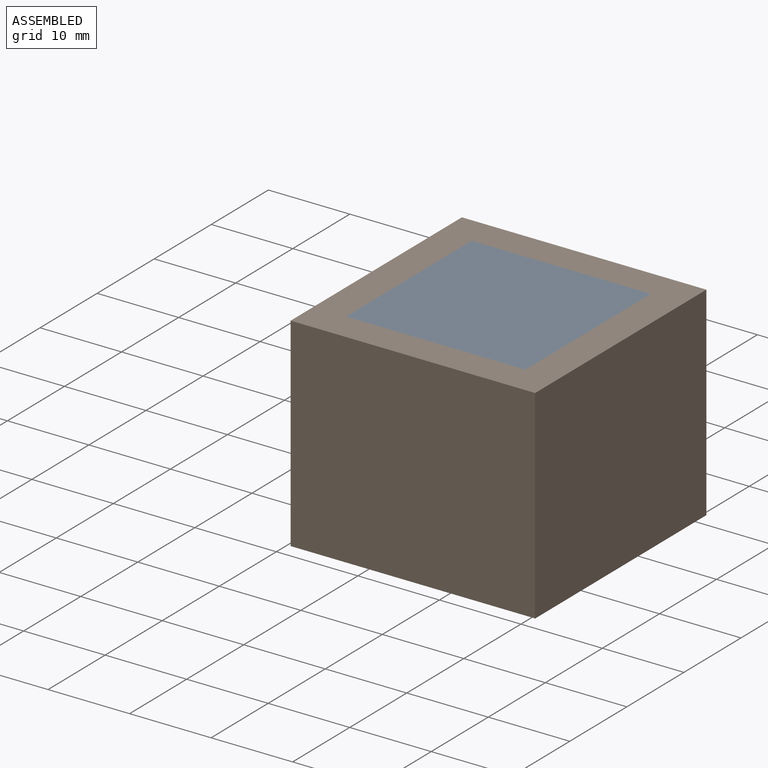
[diagram: assembled view]
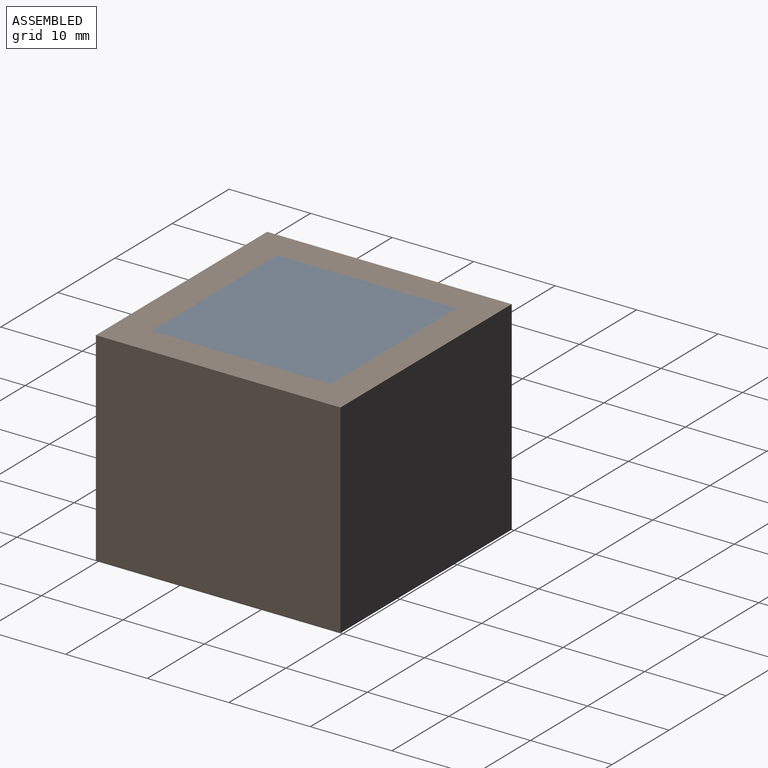
[diagram: assembled view, second angle]
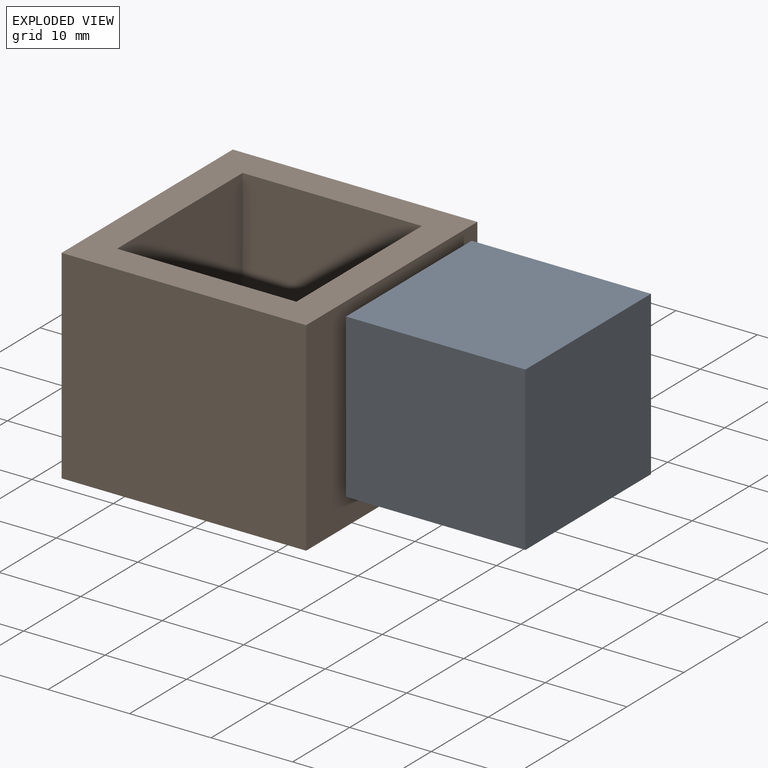
[diagram: exploded view]
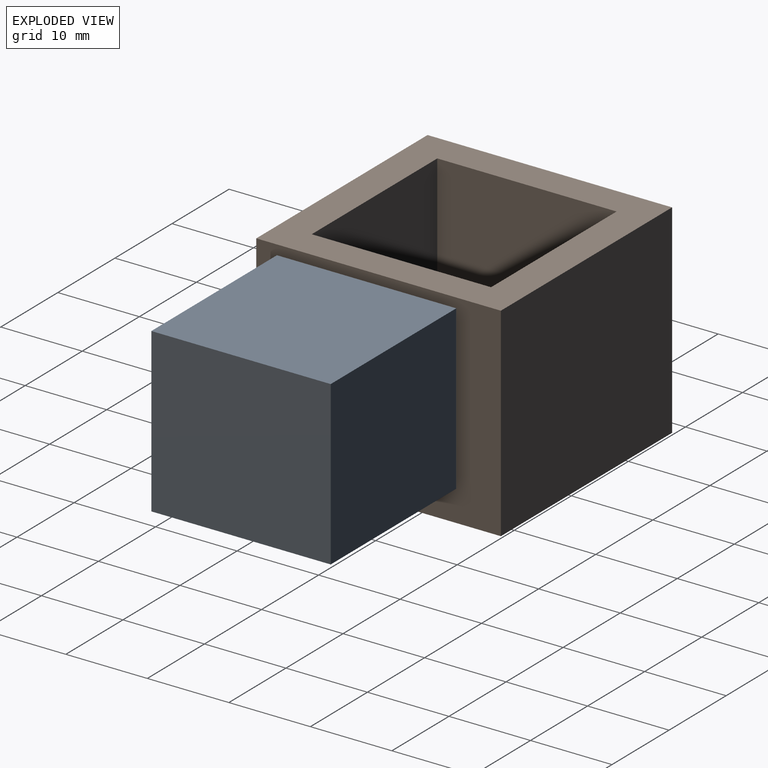
[diagram: exploded view, second angle]
ASSEMBLY  parts=2 mates=3
PART A: 6 faces, bbox 22x22x20 mm
  f0: plane 22x20mm, normal (0,1,0), area 440mm2, adj f1,f3,f4,f5
  f1: plane 22x20mm, normal (-1,0,0), area 440mm2, adj f0,f2,f4,f5
  f2: plane 22x20mm, normal (0,-1,0), area 440mm2, adj f1,f3,f4,f5
  f3: plane 22x20mm, normal (1,0,0), area 440mm2, adj f0,f2,f4,f5
  f4: plane 22x22mm, normal (0,0,1), area 484mm2, adj f0,f1,f2,f3
  f5: plane 22x22mm, normal (0,0,-1), area 484mm2, adj f0,f1,f2,f3
PART B: 11 faces, bbox 30x30x25 mm
  f0: plane 30x30mm, normal (0,0,1), area 416mm2, adj f1,f2,f3,f4,f6,f7,f8,f9
  f1: plane 30x25mm, normal (0,1,0), area 750mm2, adj f0,f2,f4,f5
  f2: plane 30x25mm, normal (-1,0,0), area 750mm2, adj f0,f1,f3,f5
  f3: plane 30x25mm, normal (0,-1,0), area 750mm2, adj f0,f2,f4,f5
  f4: plane 30x25mm, normal (1,0,0), area 750mm2, adj f0,f1,f3,f5
  f5: plane 30x30mm, normal (0,0,-1), area 900mm2, adj f1,f2,f3,f4
  f6: plane 22x20mm, normal (0,-1,0), area 440mm2, adj f0,f7,f9,f10
  f7: plane 22x20mm, normal (1,0,0), area 440mm2, adj f0,f6,f8,f10
  f8: plane 22x20mm, normal (0,1,0), area 440mm2, adj f0,f7,f9,f10
  f9: plane 22x20mm, normal (-1,0,0), area 440mm2, adj f0,f6,f8,f10
  f10: plane 22x22mm, normal (0,0,1), area 484mm2, adj f6,f7,f8,f9
PLACE A t=(-34.68,-3.38,-2.62)mm
PLACE B t=(-38.68,0.62,-7.62)mm
MATE planar B.f9 <-> A.f3  axis (-1,0,0) through (-12.68,-3.38,-2.62)mm
MATE planar A.f4 <-> B.f0  axis (0,0,1) through (-23.68,-14.38,17.38)mm
MATE planar A.f2 <-> B.f8  axis (0,-1,0) through (-12.68,-25.38,17.38)mm
